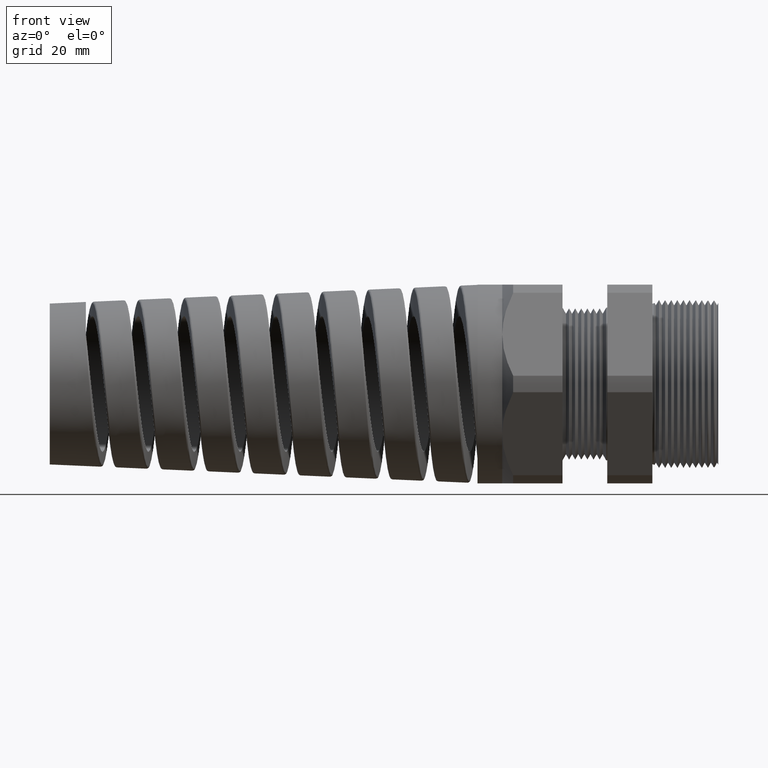
[diagram: clean part render]
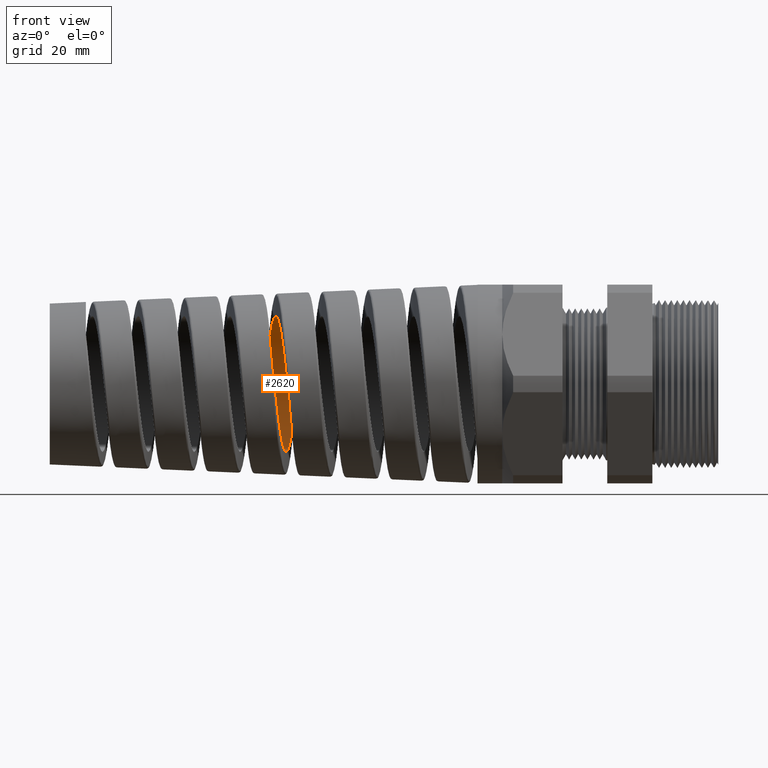
[diagram: same view with one face highlighted and labeled with its STEP entity id]
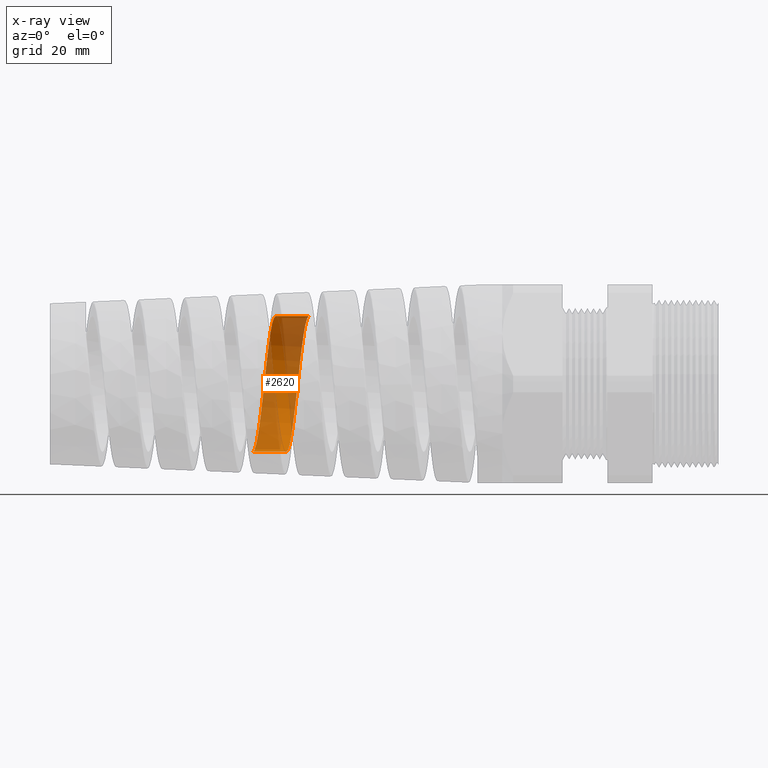
[diagram: x-ray of the same camera — body ghosted, the highlighted face saturated]
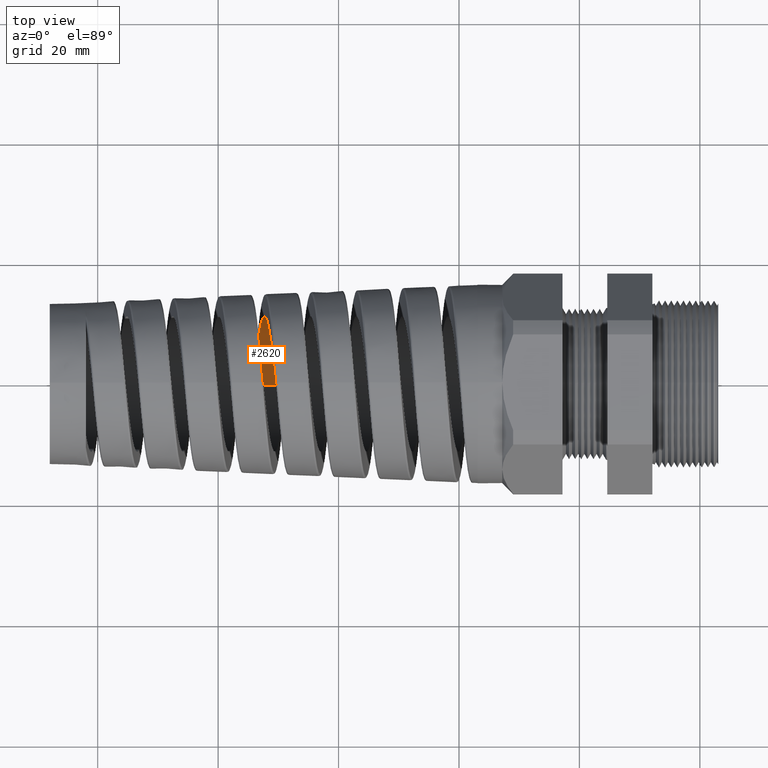
[diagram: same view with one face highlighted and labeled with its STEP entity id]
A machine part, front view. The second image highlights one B-rep face of the part: STEP entity #2620.
The next image is the same camera in x-ray: the body ghosted, the highlighted face saturated — about 64% of this face is hidden behind the body in this view.
A second angle (top view) of the same face is appended — the face is thin or edge-on in the first view.
In plain terms, the highlighted cylindrical surface (partial cylindrical patch) has radius 11.2776 mm, axis along (1, 0, 0).
Its self-contained STEP definition (entity closure, byte-faithful):
#2602 = EDGE_LOOP ( 'NONE', ( #2613, #2618, #2617, #2615 ) ) ;
#2613 = ORIENTED_EDGE ( 'NONE', *, *, #2984, .F. ) ;
#2614 = EDGE_CURVE ( 'NONE', #2832, #2856, #14158, .T. ) ;
#2615 = ORIENTED_EDGE ( 'NONE', *, *, #2616, .T. ) ;
#2616 = EDGE_CURVE ( 'NONE', #2953, #2994, #14195, .T. ) ;
#2617 = ORIENTED_EDGE ( 'NONE', *, *, #2881, .T. ) ;
#2618 = ORIENTED_EDGE ( 'NONE', *, *, #2614, .T. ) ;
#2620 = ADVANCED_FACE ( 'NONE', ( #14223 ), #14251, .F. ) ;
#2832 = VERTEX_POINT ( 'NONE', #14810 ) ;
#2856 = VERTEX_POINT ( 'NONE', #14808 ) ;
#2881 = EDGE_CURVE ( 'NONE', #2856, #2953, #14807, .T. ) ;
#2953 = VERTEX_POINT ( 'NONE', #14883 ) ;
#2984 = EDGE_CURVE ( 'NONE', #2832, #2994, #15006, .T. ) ;
#2994 = VERTEX_POINT ( 'NONE', #15022 ) ;
#14114 = CARTESIAN_POINT ( 'NONE',  ( -2.911950232264677800, 0.1006227902081838500, -0.4326903075784466200 ) ) ;
#14115 = CARTESIAN_POINT ( 'NONE',  ( -2.910388467622126600, 0.1147348782574745100, -0.4291692457914926300 ) ) ;
#14116 = CARTESIAN_POINT ( 'NONE',  ( -2.907240985229683400, 0.1427571736584514500, -0.4206788836999628100 ) ) ;
#14117 = CARTESIAN_POINT ( 'NONE',  ( -2.905669740164085600, 0.1565361601518110200, -0.4157439061988609200 ) ) ;
#14118 = CARTESIAN_POINT ( 'NONE',  ( -2.900990910552462100, 0.1967537697442287000, -0.3990817134343284100 ) ) ;
#14119 = CARTESIAN_POINT ( 'NONE',  ( -2.897896911508041700, 0.2222717876811627900, -0.3854585511246246300 ) ) ;
#14120 = CARTESIAN_POINT ( 'NONE',  ( -2.893204417430749000, 0.2585831395146259700, -0.3612236433530869300 ) ) ;
#14121 = CARTESIAN_POINT ( 'NONE',  ( -2.891623184172496000, 0.2704137350003387200, -0.3524556226914586900 ) ) ;
#14122 = CARTESIAN_POINT ( 'NONE',  ( -2.888488639069346100, 0.2929528513334888100, -0.3339568549067921700 ) ) ;
#14123 = CARTESIAN_POINT ( 'NONE',  ( -2.886931267189675000, 0.3036974468377988700, -0.3242116162247657400 ) ) ;
#14124 = CARTESIAN_POINT ( 'NONE',  ( -2.882266208343298600, 0.3343904852214996100, -0.2935238467941230800 ) ) ;
#14125 = CARTESIAN_POINT ( 'NONE',  ( -2.879165970841523600, 0.3528130864717232700, -0.2711432426676441100 ) ) ;
#14126 = CARTESIAN_POINT ( 'NONE',  ( -2.872862673697413900, 0.3854055330618195700, -0.2223922370843087500 ) ) ;
#14127 = CARTESIAN_POINT ( 'NONE',  ( -2.869756090910215600, 0.3990665518643851100, -0.1967709908672625200 ) ) ;
#14128 = CARTESIAN_POINT ( 'NONE',  ( -2.865091638876823500, 0.4156862528314662600, -0.1566849486162847400 ) ) ;
#14129 = CARTESIAN_POINT ( 'NONE',  ( -2.863535269055178300, 0.4205809244104736800, -0.1430380001639315300 ) ) ;
#14130 = CARTESIAN_POINT ( 'NONE',  ( -2.860404133305722400, 0.4290518699492376100, -0.1151636937664303200 ) ) ;
#14131 = CARTESIAN_POINT ( 'NONE',  ( -2.858822927630838300, 0.4326339150854196500, -0.1008761664248833800 ) ) ;
#14132 = CARTESIAN_POINT ( 'NONE',  ( -2.854126796079530700, 0.4411549406590804000, -0.05802361649327145200 ) ) ;
#14133 = CARTESIAN_POINT ( 'NONE',  ( -2.851031637988243400, 0.4439851371566156400, -0.02923215587331994300 ) ) ;
#14134 = CARTESIAN_POINT ( 'NONE',  ( -2.844795720676327000, 0.4440147471686608500, 0.02877890285836243900 ) ) ;
#14135 = CARTESIAN_POINT ( 'NONE',  ( -2.841632183523902500, 0.4411206201798484300, 0.05821276986950265500 ) ) ;
#14136 = CARTESIAN_POINT ( 'NONE',  ( -2.835401565667587100, 0.4298085812940811200, 0.1150682908958981400 ) ) ;
#14137 = CARTESIAN_POINT ( 'NONE',  ( -2.832305909379625200, 0.4214311189317851400, 0.1427668116755586600 ) ) ;
#14138 = CARTESIAN_POINT ( 'NONE',  ( -2.827603154229959800, 0.4047093598569401200, 0.1831910796796908900 ) ) ;
#14139 = CARTESIAN_POINT ( 'NONE',  ( -2.826022360917084300, 0.3984153000601372600, 0.1965017494742697100 ) ) ;
#14140 = CARTESIAN_POINT ( 'NONE',  ( -2.822894700564235700, 0.3846959621402534200, 0.2221636909610625600 ) ) ;
#14141 = CARTESIAN_POINT ( 'NONE',  ( -2.819784117173943700, 0.3697923337429591700, 0.2470143657876365500 ) ) ;
#14142 = CARTESIAN_POINT ( 'NONE',  ( -2.816677210227678300, 0.3525640924514849600, 0.2702687161070845800 ) ) ;
#14143 = CARTESIAN_POINT ( 'NONE',  ( -2.813557361676057400, 0.3341622642169020400, 0.2927152188830375300 ) ) ;
#14144 = CARTESIAN_POINT ( 'NONE',  ( -2.811985170964679300, 0.3243360966280171000, 0.3035726054438143700 ) ) ;
#14145 = CARTESIAN_POINT ( 'NONE',  ( -2.807264745985477400, 0.2932903327788744500, 0.3346247183126695400 ) ) ;
#14146 = CARTESIAN_POINT ( 'NONE',  ( -2.804165858958741700, 0.2708804545958886100, 0.3529838677083986200 ) ) ;
#14147 = CARTESIAN_POINT ( 'NONE',  ( -2.799499416749475800, 0.2347893002429987900, 0.3771199310266125600 ) ) ;
#14148 = CARTESIAN_POINT ( 'NONE',  ( -2.797940965394816200, 0.2223432166150338700, 0.3845940989037502400 ) ) ;
#14149 = CARTESIAN_POINT ( 'NONE',  ( -2.794802689347673000, 0.1965991305891161600, 0.3983690609697383400 ) ) ;
#14150 = CARTESIAN_POINT ( 'NONE',  ( -2.793223736669640600, 0.1833032164012345100, 0.4046569347115516700 ) ) ;
#14151 = CARTESIAN_POINT ( 'NONE',  ( -2.788535829037311200, 0.1430122847549671900, 0.4213415505524127900 ) ) ;
#14152 = CARTESIAN_POINT ( 'NONE',  ( -2.785441400004690800, 0.1153347652869175800, 0.4297413666299996200 ) ) ;
#14153 = CARTESIAN_POINT ( 'NONE',  ( -2.780758415102495600, 0.07260536575498795200, 0.4382640738559191500 ) ) ;
#14154 = CARTESIAN_POINT ( 'NONE',  ( -2.779182555269361200, 0.05808524471522565100, 0.4404268132848689300 ) ) ;
#14155 = CARTESIAN_POINT ( 'NONE',  ( -2.776040361722483600, 0.02899098897484885000, 0.4432935777474704700 ) ) ;
#14156 = CARTESIAN_POINT ( 'NONE',  ( -2.774480485239068100, 0.01447834582893187500, 0.4440000000000018900 ) ) ;
#14157 = CARTESIAN_POINT ( 'NONE',  ( -2.772924235818257500, -6.893994488151984300E-014, 0.4439999999999999500 ) ) ;
#14158 = B_SPLINE_CURVE_WITH_KNOTS ( 'NONE', 3,
 ( #14157, #14156, #14155, #14154, #14153, #14152, #14151, #14150, #14149, #14148, #14147, #14146, #14145, #14144, #14143, #14142, #14141, #14140, #14139, #14138, #14137, #14136, #14135, #14134, #14133, #14132, #14131, #14130, #14129, #14128, #14127, #14126, #14125, #14124, #14123, #14122, #14121, #14120, #14119, #14118, #14117, #14116, #14115, #14114, #14198, #14197, #14196 ),
 .UNSPECIFIED., .F., .F.,
 ( 4, 2, 2, 2, 2, 2, 2, 2, 1, 2, 2, 2, 2, 2, 2, 2, 2, 2, 2, 2, 2, 2, 2, 4 ),
 ( 0.3319018859143124100, 0.3330101689579805800, 0.3341184520016488000, 0.3363350180889851900, 0.3374433011326533600, 0.3385515841763215800, 0.3407681502636579800, 0.3418764333073261400, 0.3429847163509943700, 0.3440929993946625900, 0.3452012824383307600, 0.3474178485256671500, 0.3496344146130036000, 0.3518509807003399900, 0.3529592637440081600, 0.3540675467876763800, 0.3562841128750127700, 0.3585006789623491600, 0.3596089620060173900, 0.3607172450496856100, 0.3629338111370220000, 0.3640420941806901700, 0.3651503772243583900, 0.3673669433116947800 ),
 .UNSPECIFIED. ) ;
#14159 = CARTESIAN_POINT ( 'NONE',  ( -2.602948816809160300, 0.3771977597161854100, 0.2346713480425616200 ) ) ;
#14160 = CARTESIAN_POINT ( 'NONE',  ( -2.604530057369313300, 0.3847627737805067200, 0.2220475059215764900 ) ) ;
#14161 = CARTESIAN_POINT ( 'NONE',  ( -2.607658993697192300, 0.3984682293316552700, 0.1963938827625685300 ) ) ;
#14162 = CARTESIAN_POINT ( 'NONE',  ( -2.609215345062704000, 0.4046564713357158600, 0.1832982303709948200 ) ) ;
#14163 = CARTESIAN_POINT ( 'NONE',  ( -2.612326968034195800, 0.4157257213681332900, 0.1565797740576874700 ) ) ;
#14164 = CARTESIAN_POINT ( 'NONE',  ( -2.613882300289172000, 0.4206067112668738200, 0.1429569698961470300 ) ) ;
#14165 = CARTESIAN_POINT ( 'NONE',  ( -2.617006001567443000, 0.4290458790187950400, 0.1151795750192402000 ) ) ;
#14166 = CARTESIAN_POINT ( 'NONE',  ( -2.618581154874919800, 0.4326158534670245200, 0.1009627822249831200 ) ) ;
#14167 = CARTESIAN_POINT ( 'NONE',  ( -2.623301981986603700, 0.4411764691868119700, 0.05792377144405861500 ) ) ;
#14168 = CARTESIAN_POINT ( 'NONE',  ( -2.626402307393820300, 0.4439900376300773300, 0.02909891705527231300 ) ) ;
#14169 = CARTESIAN_POINT ( 'NONE',  ( -2.631073638623919700, 0.4440049419481679700, -0.01432084661396740600 ) ) ;
#14170 = CARTESIAN_POINT ( 'NONE',  ( -2.632634165653278100, 0.4433039838291916700, -0.02882474148318105200 ) ) ;
#14171 = CARTESIAN_POINT ( 'NONE',  ( -2.635777091062117000, 0.4404515707831862500, -0.05789388218998971900 ) ) ;
#14172 = CARTESIAN_POINT ( 'NONE',  ( -2.637356560364641400, 0.4382930296919369500, -0.07243161478339485400 ) ) ;
#14173 = CARTESIAN_POINT ( 'NONE',  ( -2.642046194412025300, 0.4297830153028609500, -0.1151826138957143800 ) ) ;
#14174 = CARTESIAN_POINT ( 'NONE',  ( -2.645142107439415900, 0.4213920266130631300, -0.1428596540766486100 ) ) ;
#14175 = CARTESIAN_POINT ( 'NONE',  ( -2.649830598825894800, 0.4047344711734259200, -0.1831312044899997300 ) ) ;
#14176 = CARTESIAN_POINT ( 'NONE',  ( -2.651409166573913900, 0.3984604676588563400, -0.1964145501665879600 ) ) ;
#14177 = CARTESIAN_POINT ( 'NONE',  ( -2.654553020095751200, 0.3846874074195460500, -0.2221823988908345200 ) ) ;
#14178 = CARTESIAN_POINT ( 'NONE',  ( -2.656113960150225900, 0.3772151318519509400, -0.2346364400317647900 ) ) ;
#14179 = CARTESIAN_POINT ( 'NONE',  ( -2.660786044842997200, 0.3530902710213444400, -0.2707421638118668900 ) ) ;
#14180 = CARTESIAN_POINT ( 'NONE',  ( -2.663885989332089200, 0.3347457606009394100, -0.2931493722603987200 ) ) ;
#14181 = CARTESIAN_POINT ( 'NONE',  ( -2.668605195280021400, 0.3037383317744659600, -0.3241802669582252700 ) ) ;
#14182 = CARTESIAN_POINT ( 'NONE',  ( -2.670181227415925100, 0.2928685905966669200, -0.3340280983655822300 ) ) ;
#14183 = CARTESIAN_POINT ( 'NONE',  ( -2.673305309488843000, 0.2704215813318506200, -0.3524470885193785600 ) ) ;
#14184 = CARTESIAN_POINT ( 'NONE',  ( -2.676416242971522600, 0.2471717996187487400, -0.3696868774585040900 ) ) ;
#14185 = CARTESIAN_POINT ( 'NONE',  ( -2.679528825385547800, 0.2223381367639918600, -0.3845947779062813300 ) ) ;
#14186 = CARTESIAN_POINT ( 'NONE',  ( -2.682657097081111400, 0.1967008447029917900, -0.3983166679233934900 ) ) ;
#14187 = CARTESIAN_POINT ( 'NONE',  ( -2.684237894688574300, 0.1834034905333150900, -0.4046134880406849800 ) ) ;
#14188 = CARTESIAN_POINT ( 'NONE',  ( -2.688946982181582800, 0.1429612866556684800, -0.4213665040018821900 ) ) ;
#14189 = CARTESIAN_POINT ( 'NONE',  ( -2.692045487960571700, 0.1152635418461172700, -0.4297553681639314500 ) ) ;
#14190 = CARTESIAN_POINT ( 'NONE',  ( -2.696721621821437600, 0.07264549903628612900, -0.4382561712125978000 ) ) ;
#14191 = CARTESIAN_POINT ( 'NONE',  ( -2.698284786795031900, 0.05825962736715528700, -0.4404045863025657900 ) ) ;
#14192 = CARTESIAN_POINT ( 'NONE',  ( -2.701435306973924500, 0.02911803467279313800, -0.4432860519733143300 ) ) ;
#14193 = CARTESIAN_POINT ( 'NONE',  ( -2.703006979492054800, 0.01450782708666742600, -0.4440000000000168300 ) ) ;
#14194 = CARTESIAN_POINT ( 'NONE',  ( -2.704567650367871500, -5.063458913694260100E-013, -0.4439999999999997800 ) ) ;
#14195 = B_SPLINE_CURVE_WITH_KNOTS ( 'NONE', 3,
 ( #14194, #14193, #14192, #14191, #14190, #14189, #14188, #14187, #14186, #14185, #14184, #14183, #14182, #14181, #14180, #14179, #14178, #14177, #14176, #14175, #14174, #14173, #14172, #14171, #14170, #14169, #14168, #14167, #14166, #14165, #14164, #14163, #14162, #14161, #14160, #14159, #14238, #14237, #14236, #14235, #14234, #14233, #14232, #14231, #14230, #14229, #14228, #14227, #14226, #14225, #14224 ),
 .UNSPECIFIED., .F., .F.,
 ( 4, 2, 2, 2, 2, 1, 2, 2, 2, 2, 2, 2, 2, 2, 2, 2, 2, 2, 2, 2, 2, 2, 2, 2, 2, 4 ),
 ( 0.3091514427114105400, 0.3102587081669102600, 0.3113659736224099700, 0.3135805045334094700, 0.3146877699889091800, 0.3157950354444089000, 0.3169023008999086200, 0.3180095663554083400, 0.3202240972664077700, 0.3213313627219074900, 0.3224386281774072000, 0.3246531590884066400, 0.3257604245439063600, 0.3268676899994060700, 0.3290822209104055100, 0.3301894863659052300, 0.3312967518214049400, 0.3324040172769046600, 0.3335112827324043800, 0.3357258136434038100, 0.3368330790989035300, 0.3379403445544032500, 0.3401548754654026800, 0.3412621409209023500, 0.3423694063764020600, 0.3445839372874015000 ),
 .UNSPECIFIED. ) ;
#14196 = CARTESIAN_POINT ( 'NONE',  ( -2.922855269525273000, 6.304699660690559600E-013, -0.4439999999999999500 ) ) ;
#14197 = CARTESIAN_POINT ( 'NONE',  ( -2.919717839077932800, 0.02919161599372300000, -0.4439999999999583700 ) ) ;
#14198 = CARTESIAN_POINT ( 'NONE',  ( -2.916621993555912800, 0.05799540440934845800, -0.4411484169685295200 ) ) ;
#14223 = FACE_OUTER_BOUND ( 'NONE', #2602, .T. ) ;
#14224 = CARTESIAN_POINT ( 'NONE',  ( -2.554499259192630300, -4.312819649747653400E-013, 0.4439999999999999500 ) ) ;
#14225 = CARTESIAN_POINT ( 'NONE',  ( -2.557655684111068300, 0.02933530202069721900, 0.4440000000000288700 ) ) ;
#14226 = CARTESIAN_POINT ( 'NONE',  ( -2.560759250515732200, 0.05818341242294374600, 0.4411208549137880500 ) ) ;
#14227 = CARTESIAN_POINT ( 'NONE',  ( -2.565427413279534700, 0.1007451179174518700, 0.4326611269181240800 ) ) ;
#14228 = CARTESIAN_POINT ( 'NONE',  ( -2.566985501710302900, 0.1148130880060852100, 0.4291459905797911400 ) ) ;
#14229 = CARTESIAN_POINT ( 'NONE',  ( -2.570120849515784600, 0.1427036036753005800, 0.4206946730186702500 ) ) ;
#14230 = CARTESIAN_POINT ( 'NONE',  ( -2.571703555936267500, 0.1565695510334827200, 0.4157329205371762000 ) ) ;
#14231 = CARTESIAN_POINT ( 'NONE',  ( -2.576402415513002500, 0.1969100448759433800, 0.3990112483924977400 ) ) ;
#14232 = CARTESIAN_POINT ( 'NONE',  ( -2.579499300741745500, 0.2224160040586317100, 0.3853683146716046500 ) ) ;
#14233 = CARTESIAN_POINT ( 'NONE',  ( -2.584180501931769400, 0.2586067064763130100, 0.3612048941653954700 ) ) ;
#14234 = CARTESIAN_POINT ( 'NONE',  ( -2.585750912198734800, 0.2703519844575962300, 0.3525057980197014400 ) ) ;
#14235 = CARTESIAN_POINT ( 'NONE',  ( -2.588902416167871300, 0.2929962846271394500, 0.3339217128794701500 ) ) ;
#14236 = CARTESIAN_POINT ( 'NONE',  ( -2.590465765147141700, 0.3037700866252006100, 0.3241444583321908500 ) ) ;
#14237 = CARTESIAN_POINT ( 'NONE',  ( -2.595142458034351800, 0.3344976806776772100, 0.2934056632109529100 ) ) ;
#14238 = CARTESIAN_POINT ( 'NONE',  ( -2.598241070034097400, 0.3528725641954697000, 0.2710500314447542000 ) ) ;
#14247 = DIRECTION ( 'NONE',  ( 0.0000000000000000000, 0.0000000000000000000, -1.000000000000000000 ) ) ;
#14248 = DIRECTION ( 'NONE',  ( 1.000000000000000000, 0.0000000000000000000, 0.0000000000000000000 ) ) ;
#14249 = CARTESIAN_POINT ( 'NONE',  ( 0.09602717987635048200, 0.0000000000000000000, 0.0000000000000000000 ) ) ;
#14250 = AXIS2_PLACEMENT_3D ( 'NONE', #14249, #14248, #14247 ) ;
#14251 = CYLINDRICAL_SURFACE ( 'NONE', #14250, 0.4439999999999999500 ) ;
#14807 = LINE ( 'NONE', #14890, #14889 ) ;
#14808 = CARTESIAN_POINT ( 'NONE',  ( -2.922855269525273000, 6.304699660690559600E-013, -0.4439999999999999500 ) ) ;
#14810 = CARTESIAN_POINT ( 'NONE',  ( -2.772924235818257500, -6.893994488151984300E-014, 0.4439999999999999500 ) ) ;
#14883 = CARTESIAN_POINT ( 'NONE',  ( -2.704567650367871500, -5.063458913694260100E-013, -0.4439999999999997800 ) ) ;
#14888 = DIRECTION ( 'NONE',  ( 1.000000000000000000, 0.0000000000000000000, 0.0000000000000000000 ) ) ;
#14889 = VECTOR ( 'NONE', #14888, 39.37007874015748100 ) ;
#14890 = CARTESIAN_POINT ( 'NONE',  ( 0.09602717987635048200, 0.0000000000000000000, -0.4439999999999999500 ) ) ;
#15003 = DIRECTION ( 'NONE',  ( 1.000000000000000000, 0.0000000000000000000, 0.0000000000000000000 ) ) ;
#15004 = VECTOR ( 'NONE', #15003, 39.37007874015748100 ) ;
#15005 = CARTESIAN_POINT ( 'NONE',  ( 0.09602717987635048200, 5.437431788214247900E-017, 0.4439999999999999500 ) ) ;
#15006 = LINE ( 'NONE', #15005, #15004 ) ;
#15022 = CARTESIAN_POINT ( 'NONE',  ( -2.554499259192630300, -4.312819649747653400E-013, 0.4439999999999999500 ) ) ;